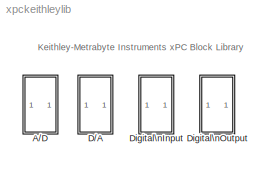
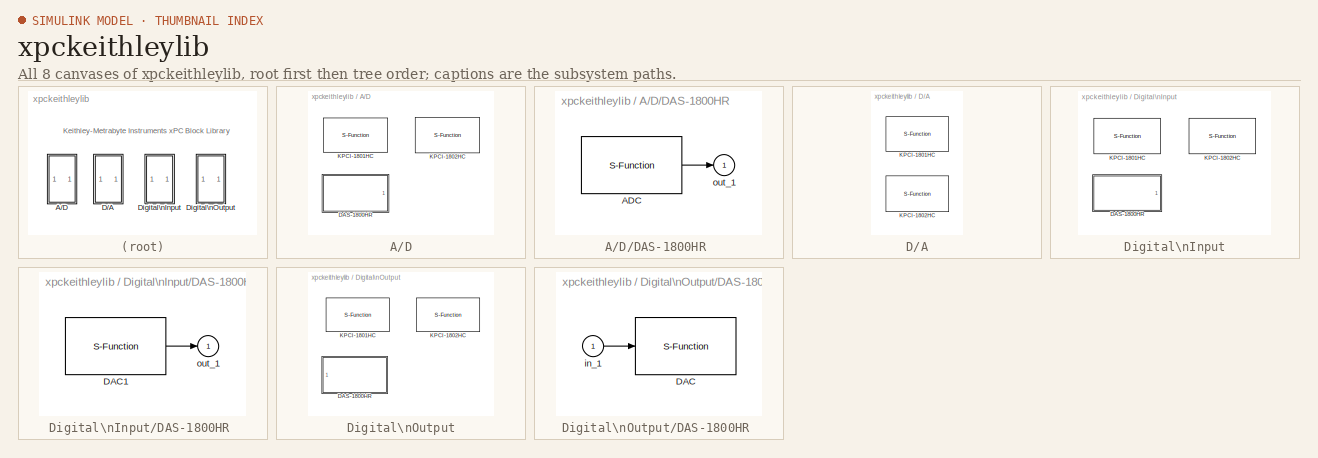
[diagram: thumbnail index - all 8 canvases of the model, root first then tree order]
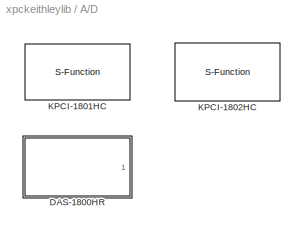
MODEL xpckeithleylib
KIND library
BLOCK [SubSystem] A//D
  EnableExecutionContextPropagation = on
  MinAlgLoopOccurrences = off
  Ports = []
  TreatAsAtomicUnit = off
BLOCK [SubSystem] A//D/DAS-1800HR 
  EnableExecutionContextPropagation = on
  MaskCallbackString = |||||
  MaskDescription = Keithley Metrabyte\nDAS-1800HR\nAnalog Input\n
  MaskDisplay = disp('DAS-1800HR\\nKeithley Metrabyte\\nAnalog Input')
  MaskEnableString = on,on,on,on,on,on
  MaskHelp = helpview(fullfile(docroot, 'mapfiles', 'xpc.map'), 'KeithleyMetrabyte_DAS-1800HR_AD')
  MaskIconFrame = on
  MaskIconOpaque = on
  MaskIconRotate = none
  MaskIconUnits = autoscale
  MaskInitialization = baseaddress=hex2dec(baseaddress(3:end));
  MaskPromptString = Channel vector:|Gain vector (1,2,4,8):|Range vector:|Input coupling:|Sample time:|Base address (i.e. 0xd000):
  MaskStyleString = edit,edit,popup(Bipolar|Unipolar),popup(Differential (8 channels)|Single-ended (16 channels)|Single-ended common mode (16 channels)),edit,edit
  MaskTabNameString = ,,,,,
  MaskToolTipString = on,on,on,on,on,on
  MaskTunableValueString = on,on,on,on,on,on
  MaskType = Analog Input Module
  MaskValueString = [1]|[1]|Bipolar|Differential (8 channels)|0.001|0x300
  MaskVarAliasString = ,,,,,
  MaskVariables = channels=@1;gain=@2;range=@3;mux=@4;sampletime=@5;baseaddress=&6;
  MaskVisibilityString = on,on,on,on,on,on
  MinAlgLoopOccurrences = off
  Ports = [0, 1]
  ShowPortLabels = off
  TreatAsAtomicUnit = off
BLOCK [S-Function] A//D/DAS-1800HR /ADC
  FunctionName = adkmdas1800hr
  Parameters = channels, gain, range, mux, sampletime, baseaddress
  Ports = [0, 1]
BLOCK [Outport] A//D/DAS-1800HR /out_1
  BusOutputAsStruct = off
  IconDisplay = Port number
  InitialOutput = 0
BLOCK [S-Function] A//D/KPCI-1801HC 
  FunctionName = adkpci1800
  InitFcn = madkpci1800(1);
  MaskCallbackString = ||||
  MaskDescription = KPCI-1801HC\nKeithley\nAnalog Input
  MaskDisplay = disp('KPCI-1801HC\\nKeithley\\nAnalog Input');port_label('output',1,'1');
  MaskEnableString = on,on,on,on,on
  MaskHelp = helpview(fullfile(docroot, 'mapfiles', 'xpc.map'), 'KeithleyMetrabyte_KPCI-1801HC_AD')
  MaskIconFrame = on
  MaskIconOpaque = on
  MaskIconRotate = none
  MaskIconUnits = autoscale
  MaskInitialization = boardType=2;\nmadkpci1800(2, channel, range, coupling, slot, boardType);
  MaskPromptString = Channel vector:|Range vector:|Input coupling vector (0: Single-ended, 1: Differential):|Sample time:|PCI slot (-1: autosearch):
  MaskSelfModifiable = on
  MaskStyleString = edit,edit,edit,edit,edit
  MaskTabNameString = ,,,,
  MaskToolTipString = on,on,on,on,on
  MaskTunableValueString = on,on,on,on,on
  MaskType = adkpci1801hc
  MaskValueString = [1]|[-5]|[0]|0.001|-1
  MaskVarAliasString = ,,,,
  MaskVariables = channel=@1;range=@2;coupling=@3;sampletime=@4;slot=@5;
  MaskVisibilityString = on,on,on,on,on
  Parameters = channel, range, coupling, sampletime, slot,  boardType
  Ports = [0, 1]
BLOCK [S-Function] A//D/KPCI-1802HC 
  FunctionName = adkpci1800
  InitFcn = madkpci1800(1);
  MaskCallbackString = ||||
  MaskDescription = KPCI-1802HC\nKeithley\nAnalog Input
  MaskDisplay = disp('KPCI-1802HC\\nKeithley\\nAnalog Input');port_label('output',1,'1');
  MaskEnableString = on,on,on,on,on
  MaskHelp = helpview(fullfile(docroot, 'mapfiles', 'xpc.map'), 'KeithleyMetrabyte_KPCI-1802HC_AD')
  MaskIconFrame = on
  MaskIconOpaque = on
  MaskIconRotate = none
  MaskIconUnits = autoscale
  MaskInitialization = boardType=1;\nmadkpci1800(2, channel, range, coupling, slot, boardType);
  MaskPromptString = Channel vector:|Range vector:|Input coupling vector (0: Single-ended, 1: Differential):|Sample time:|PCI slot (-1: autosearch):
  MaskSelfModifiable = on
  MaskStyleString = edit,edit,edit,edit,edit
  MaskTabNameString = ,,,,
  MaskToolTipString = on,on,on,on,on
  MaskTunableValueString = on,on,on,on,on
  MaskType = adkpci1802hc
  MaskValueString = [1]|[-10]|[0]|0.001|-1
  MaskVarAliasString = ,,,,
  MaskVariables = channel=@1;range=@2;coupling=@3;sampletime=@4;slot=@5;
  MaskVisibilityString = on,on,on,on,on
  Parameters = channel, range, coupling, sampletime, slot,  boardType
  Ports = [0, 1]
BLOCK [SubSystem] D//A
  EnableExecutionContextPropagation = on
  MinAlgLoopOccurrences = off
  Ports = []
  TreatAsAtomicUnit = off
BLOCK [S-Function] D//A/KPCI-1801HC 
  FunctionName = dakpci1800
  InitFcn = mdakpci1800(1);
  MaskCallbackString = ||||
  MaskDescription = KPCI-1801HC\nKeithley\nAnalog Output
  MaskDisplay = disp('KPCI-1801HC\\nKeithley\\nAnalog Output');port_label('input',1,'1');
  MaskEnableString = on,on,on,on,on
  MaskHelp = helpview(fullfile(docroot, 'mapfiles', 'xpc.map'), 'KeithleyMetrabyte_KPCI-1801HC_DA')
  MaskIconFrame = on
  MaskIconOpaque = on
  MaskIconRotate = none
  MaskIconUnits = autoscale
  MaskInitialization = boardType=2;\nrange=-10; coupling=0;\n[reset, initValue, range, coupling] = mdakpci1800(2, channel, reset, initValue, range, coupling, slot, boardType);\n
  MaskPromptString = Channel vector:|Reset vector:|Initial value vector:|Sample time:|PCI slot (-1: autosearch):
  MaskSelfModifiable = on
  MaskStyleString = edit,edit,edit,edit,edit
  MaskTabNameString = ,,,,
  MaskToolTipString = on,on,on,on,on
  MaskTunableValueString = on,on,on,on,on
  MaskType = dakpci1801hc
  MaskValueString = [1]|[1]|[0]|0.001|-1
  MaskVarAliasString = ,,,,
  MaskVariables = channel=@1;reset=@2;initValue=@3;sampletime=@4;slot=@5;
  MaskVisibilityString = on,on,on,on,on
  Parameters = channel, reset, initValue, sampletime, slot,  boardType
  Ports = [1]
BLOCK [S-Function] D//A/KPCI-1802HC 
  FunctionName = dakpci1800
  InitFcn = mdakpci1800(1);
  MaskCallbackString = ||||
  MaskDescription = KPCI-1802HC\nKeithley\nAnalog Output
  MaskDisplay = disp('KPCI-1802HC\\nKeithley\\nAnalog Output');port_label('input',1,'1');
  MaskEnableString = on,on,on,on,on
  MaskHelp = helpview(fullfile(docroot, 'mapfiles', 'xpc.map'), 'KeithleyMetrabyte_KPCI-1802HC_DA')
  MaskIconFrame = on
  MaskIconOpaque = on
  MaskIconRotate = none
  MaskIconUnits = autoscale
  MaskInitialization = boardType=1;\nrange=-10; coupling=0;\n[reset, initValue, range, coupling] = mdakpci1800(2, channel, reset, initValue, range, coupling, slot, boardType);\n
  MaskPromptString = Channel vector:|Reset vector:|Initial value vector:|Sample time:|PCI slot (-1: autosearch):
  MaskSelfModifiable = on
  MaskStyleString = edit,edit,edit,edit,edit
  MaskTabNameString = ,,,,
  MaskToolTipString = on,on,on,on,on
  MaskTunableValueString = on,on,on,on,on
  MaskType = dakpci1802hc
  MaskValueString = [1]|[1]|[0]|0.001|-1
  MaskVarAliasString = ,,,,
  MaskVariables = channel=@1;reset=@2;initValue=@3;sampletime=@4;slot=@5;
  MaskVisibilityString = on,on,on,on,on
  Parameters = channel, reset, initValue, sampletime, slot,  boardType
  Ports = [1]
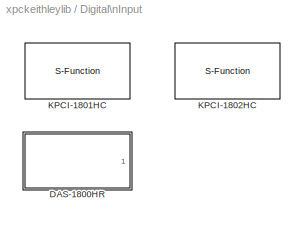
BLOCK [SubSystem] Digital\nInput
  EnableExecutionContextPropagation = on
  MinAlgLoopOccurrences = off
  Ports = []
  TreatAsAtomicUnit = off
BLOCK [SubSystem] Digital\nInput/DAS-1800HR 
  EnableExecutionContextPropagation = on
  MaskCallbackString = ||
  MaskDescription = Keithley Metrabyte\nDAS-1800HR\nDigital Input
  MaskDisplay = disp('DAS-1800HR\\nKeithley Metrabyte\\nDigital Input')
  MaskEnableString = on,on,on
  MaskHelp = helpview(fullfile(docroot, 'mapfiles', 'xpc.map'), 'KeithleyMetrabyte_DAS-1800HR_DIN')
  MaskIconFrame = on
  MaskIconOpaque = on
  MaskIconRotate = none
  MaskIconUnits = autoscale
  MaskInitialization = baseaddress=hex2dec(baseaddress(3:end));
  MaskPromptString = Number of channels:|Sample time:|Base address (i.e. 0xd000):
  MaskStyleString = edit,edit,edit
  MaskTabNameString = ,,
  MaskToolTipString = on,on,on
  MaskTunableValueString = on,on,on
  MaskType = Digital Input Module
  MaskValueString = 1|0.001|0x300
  MaskVarAliasString = ,,
  MaskVariables = n_channels=@1;sample_time=@2;baseaddress=&3;
  MaskVisibilityString = on,on,on
  MinAlgLoopOccurrences = off
  Ports = [0, 1]
  ShowPortLabels = off
  TreatAsAtomicUnit = off
BLOCK [S-Function] Digital\nInput/DAS-1800HR /DAC1
  FunctionName = dikmdas1800hr
  Parameters = n_channels,sample_time,baseaddress
  Ports = [0, 1]
BLOCK [Outport] Digital\nInput/DAS-1800HR /out_1
  BusOutputAsStruct = off
  IconDisplay = Port number
  InitialOutput = 0
BLOCK [S-Function] Digital\nInput/KPCI-1801HC 
  FunctionName = dikpci1800
  InitFcn = mdiokpci1800(1);
  MaskCallbackString = ||
  MaskDescription = KPCI-1801HC\nKeithley\nDigital Input
  MaskDisplay = disp('KPCI-1801HC\\nKeithley\\nDigital Input');port_label('output',1,'1');
  MaskEnableString = on,on,on
  MaskHelp = helpview(fullfile(docroot, 'mapfiles', 'xpc.map'), 'KeithleyMetrabyte_KPCI-1801HC_DIN')
  MaskIconFrame = on
  MaskIconOpaque = on
  MaskIconRotate = none
  MaskIconUnits = autoscale
  MaskInitialization = control=0;\nboardType=2;\nmdiokpci1800(2, channel,slot,1,boardType);\n
  MaskPromptString = Channel vector:|Sample time:|PCI slot (-1: autosearch):
  MaskSelfModifiable = on
  MaskStyleString = edit,edit,edit
  MaskTabNameString = ,,
  MaskToolTipString = on,on,on
  MaskTunableValueString = on,on,on
  MaskType = dikpci1801hc
  MaskValueString = [1]|0.001|-1
  MaskVarAliasString = ,,
  MaskVariables = channel=@1;sampletime=@2;slot=@3;
  MaskVisibilityString = on,on,on
  Parameters = channel,sampletime,slot, control, boardType
  Ports = [0, 1]
BLOCK [S-Function] Digital\nInput/KPCI-1802HC 
  FunctionName = dikpci1800
  InitFcn = mdiokpci1800(1);
  MaskCallbackString = ||
  MaskDescription = KPCI-1802HC\nKeithley\nDigital Input
  MaskDisplay = disp('KPCI-1802HC\\nKeithley\\nDigital Input');port_label('output',1,'1');
  MaskEnableString = on,on,on
  MaskHelp = helpview(fullfile(docroot, 'mapfiles', 'xpc.map'), 'KeithleyMetrabyte_KPCI-1802HC_DIN')
  MaskIconFrame = on
  MaskIconOpaque = on
  MaskIconRotate = none
  MaskIconUnits = autoscale
  MaskInitialization = control=0;\nboardType=1;\nmdiokpci1800(2, channel,slot,1,boardType);\n
  MaskPromptString = Channel vector:|Sample time:|PCI slot (-1: autosearch):
  MaskSelfModifiable = on
  MaskStyleString = edit,edit,edit
  MaskTabNameString = ,,
  MaskToolTipString = on,on,on
  MaskTunableValueString = on,on,on
  MaskType = dikpci1802hc
  MaskValueString = [1]|0.001|-1
  MaskVarAliasString = ,,
  MaskVariables = channel=@1;sampletime=@2;slot=@3;
  MaskVisibilityString = on,on,on
  Parameters = channel,sampletime,slot, control, boardType
  Ports = [0, 1]
BLOCK [SubSystem] Digital\nOutput
  EnableExecutionContextPropagation = on
  MinAlgLoopOccurrences = off
  Ports = []
  TreatAsAtomicUnit = off
BLOCK [SubSystem] Digital\nOutput/DAS-1800HR 
  EnableExecutionContextPropagation = on
  MaskCallbackString = ||
  MaskDescription = Keithley Metrabyte\nDAS-1800HR\nDigital Output
  MaskDisplay = disp('DAS-1800HR\\nKeithley Metrabyte\\nDigital Output')
  MaskEnableString = on,on,on
  MaskHelp = helpview(fullfile(docroot, 'mapfiles', 'xpc.map'), 'KeithleyMetrabyte_DAS-1800HR_DOUT')
  MaskIconFrame = on
  MaskIconOpaque = on
  MaskIconRotate = none
  MaskIconUnits = autoscale
  MaskInitialization = baseaddress=hex2dec(baseaddress(3:end));
  MaskPromptString = Number of channels:|Sample time:|Base address (i.e. 0xd000):
  MaskStyleString = edit,edit,edit
  MaskTabNameString = ,,
  MaskToolTipString = on,on,on
  MaskTunableValueString = on,on,on
  MaskType = Digital Output Module
  MaskValueString = 1|0.001|0x300
  MaskVarAliasString = ,,
  MaskVariables = n_channels=@1;sample_time=@2;baseaddress=&3;
  MaskVisibilityString = on,on,on
  MinAlgLoopOccurrences = off
  Ports = [1]
  ShowPortLabels = off
  TreatAsAtomicUnit = off
BLOCK [S-Function] Digital\nOutput/DAS-1800HR /DAC
  FunctionName = dokmdas1800hr
  Parameters = n_channels,sample_time,baseaddress
  Ports = [1]
BLOCK [Inport] Digital\nOutput/DAS-1800HR /in_1
  IconDisplay = Port number
  LatchInput = off
BLOCK [S-Function] Digital\nOutput/KPCI-1801HC 
  FunctionName = dokpci1800
  InitFcn = mdiokpci1800(1);
  MaskCallbackString = ||||
  MaskDescription = KPCI-1801HC\nKeithley\nDigital Output
  MaskDisplay = disp('KPCI-1801HC\\nKeithley\\nDigital Output');port_label('input',1,'1');
  MaskEnableString = on,on,on,on,on
  MaskHelp = helpview(fullfile(docroot, 'mapfiles', 'xpc.map'), 'KeithleyMetrabyte_KPCI-1801HC_DOUT')
  MaskIconFrame = on
  MaskIconOpaque = on
  MaskIconRotate = none
  MaskIconUnits = autoscale
  MaskInitialization = control=0;\nboardType=2;\n[reset, initValue] = mdiokpci1800(2, channel, slot, 2, boardType, reset, initValue);\n
  MaskPromptString = Channel vector:|Reset vector:|Initial value vector:|Sample time:|PCI slot (-1: autosearch):
  MaskSelfModifiable = on
  MaskStyleString = edit,edit,edit,edit,edit
  MaskTabNameString = ,,,,
  MaskToolTipString = on,on,on,on,on
  MaskTunableValueString = on,on,on,on,on
  MaskType = dokpci1801hc
  MaskValueString = [1]|[1]|[0]|0.001|-1
  MaskVarAliasString = ,,,,
  MaskVariables = channel=@1;reset=@2;initValue=@3;sampletime=@4;slot=@5;
  MaskVisibilityString = on,on,on,on,on
  Parameters = channel, reset, initValue, sampletime, slot, control, boardType
  Ports = [1]
BLOCK [S-Function] Digital\nOutput/KPCI-1802HC 
  FunctionName = dokpci1800
  InitFcn = mdiokpci1800(1);
  MaskCallbackString = ||||
  MaskDescription = KPCI-1802HC\nKeithley\nDigital Output
  MaskDisplay = disp('KPCI-1802HC\\nKeithley\\nDigital Output');port_label('input',1,'1');
  MaskEnableString = on,on,on,on,on
  MaskHelp = helpview(fullfile(docroot, 'mapfiles', 'xpc.map'), 'KeithleyMetrabyte_KPCI-1802HC_DOUT')
  MaskIconFrame = on
  MaskIconOpaque = on
  MaskIconRotate = none
  MaskIconUnits = autoscale
  MaskInitialization = control=0;\nboardType=1;\n[reset, initValue] = mdiokpci1800(2, channel, slot, 2, boardType, reset, initValue);\n
  MaskPromptString = Channel vector:|Reset vector:|Initial value vector:|Sample time:|PCI slot (-1: autosearch):
  MaskSelfModifiable = on
  MaskStyleString = edit,edit,edit,edit,edit
  MaskTabNameString = ,,,,
  MaskToolTipString = on,on,on,on,on
  MaskTunableValueString = on,on,on,on,on
  MaskType = dokpci1802hc
  MaskValueString = [1]|[1]|[0]|0.001|-1
  MaskVarAliasString = ,,,,
  MaskVariables = channel=@1;reset=@2;initValue=@3;sampletime=@4;slot=@5;
  MaskVisibilityString = on,on,on,on,on
  Parameters = channel, reset, initValue, sampletime, slot, control, boardType
  Ports = [1]
ANNOTATION (root): Keithley-Metrabyte Instruments xPC Block Library
LINE A//D/DAS-1800HR /ADC:1 -> A//D/DAS-1800HR /out_1:1
LINE Digital\nInput/DAS-1800HR /DAC1:1 -> Digital\nInput/DAS-1800HR /out_1:1
LINE Digital\nOutput/DAS-1800HR /in_1:1 -> Digital\nOutput/DAS-1800HR /DAC:1
